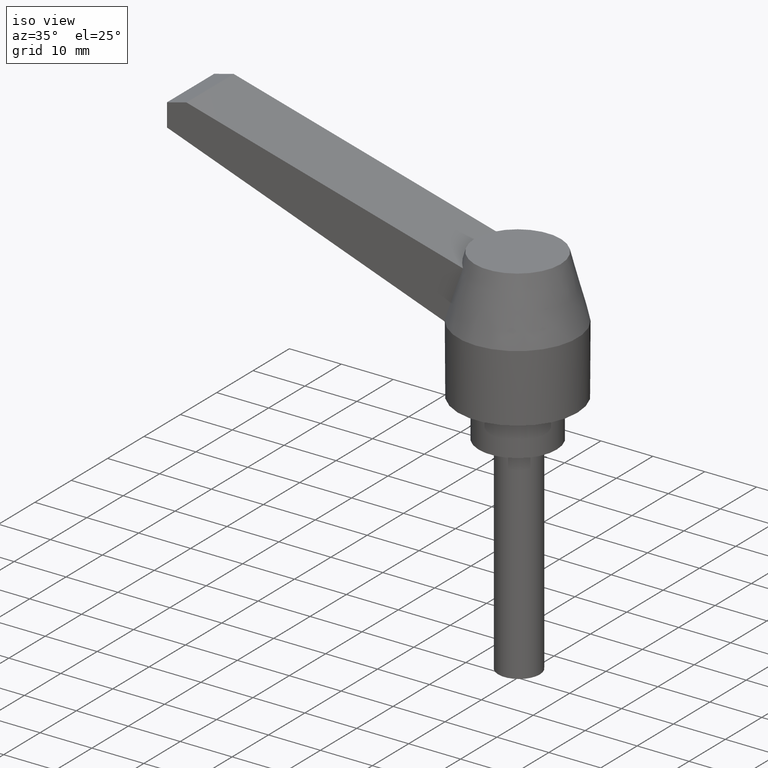
[diagram: clean part render]
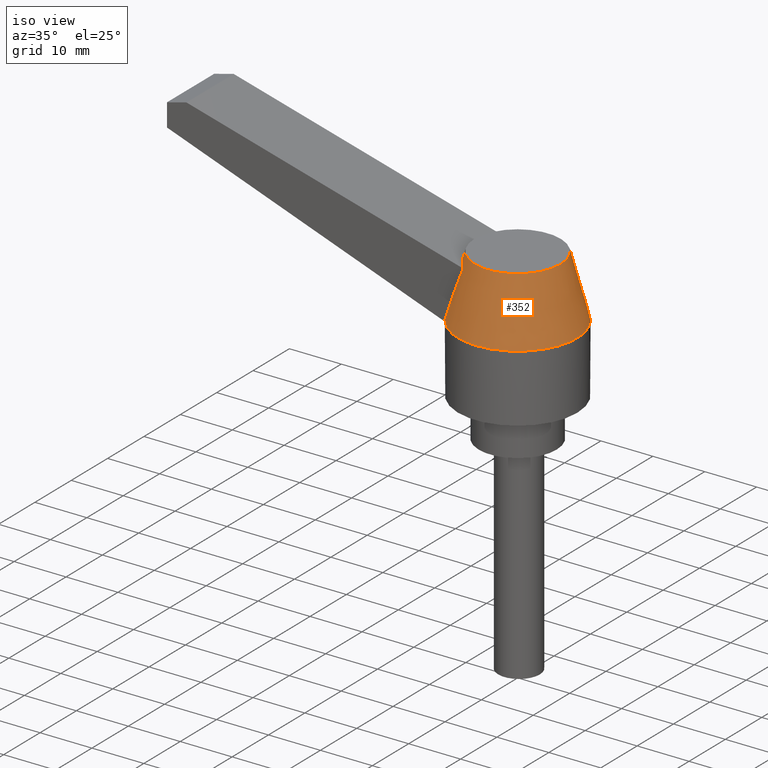
[diagram: same view with one face highlighted and labeled with its STEP entity id]
A machine part, iso view. The second image highlights one B-rep face of the part: STEP entity #352.
In plain terms, the highlighted face is a freeform B-spline surface patch.
Its self-contained STEP definition (entity closure, byte-faithful):
#80=CARTESIAN_POINT('',(8.284609690826677,4.310419E-014,32.500000000000007));
#81=VERTEX_POINT('',#80);
#82=CARTESIAN_POINT('',(-8.284609690826493,1.990051E-015,32.500000000000028));
#83=VERTEX_POINT('',#82);
#84=CARTESIAN_POINT('',(1.205831E-013,4.218442E-014,32.500000000000014));
#85=DIRECTION('',(-8.327157E-016,-1.072679E-015,-1.0));
#86=DIRECTION('',(-1.0,-1.110223E-016,8.327157E-016));
#87=AXIS2_PLACEMENT_3D('',#84,#85,#86);
#88=CIRCLE('',#87,8.284609690826557);
#89=EDGE_CURVE('',#81,#83,#88,.T.);
#91=CARTESIAN_POINT('',(1.205831E-013,4.218442E-014,32.500000000000014));
#92=DIRECTION('',(-8.327157E-016,-1.072679E-015,-1.0));
#93=DIRECTION('',(-1.0,-1.110223E-016,8.327157E-016));
#94=AXIS2_PLACEMENT_3D('',#91,#92,#93);
#95=CIRCLE('',#94,8.284609690826557);
#96=EDGE_CURVE('',#83,#81,#95,.T.);
#225=CARTESIAN_POINT('',(-9.486832980505144,6.499999999999973,20.500000000000014));
#226=VERTEX_POINT('',#225);
#233=CARTESIAN_POINT('',(-9.486832980505144,-6.500000000000132,20.500000000000028));
#234=VERTEX_POINT('',#233);
#235=CARTESIAN_POINT('',(1.205831E-013,4.144963E-014,20.500000000000000));
#236=DIRECTION('',(-2.068442E-015,-1.072679E-015,-1.0));
#237=DIRECTION('',(-1.0,-1.110223E-016,2.068442E-015));
#238=AXIS2_PLACEMENT_3D('',#235,#236,#237);
#239=CIRCLE('',#238,11.500000000000028);
#240=EDGE_CURVE('',#226,#234,#239,.T.);
#270=CARTESIAN_POINT('',(-11.500000000000011,3.670845E-016,20.500000000000028));
#271=CARTESIAN_POINT('',(-11.500000000000039,11.500000000000110,20.500000000000018));
#272=CARTESIAN_POINT('',(7.115116E-014,11.500000000000140,20.499999999999996));
#273=CARTESIAN_POINT('',(11.500000000000179,11.500000000000171,20.499999999999975));
#274=CARTESIAN_POINT('',(11.500000000000210,5.825746E-014,20.499999999999986));
#275=CARTESIAN_POINT('',(11.500000000000238,-11.500000000000052,20.499999999999996));
#276=CARTESIAN_POINT('',(1.290415E-013,-11.500000000000080,20.500000000000018));
#277=CARTESIAN_POINT('',(-11.499999999999982,-11.500000000000110,20.500000000000039));
#278=CARTESIAN_POINT('',(-11.500000000000011,3.670845E-016,20.500000000000028));
#279=CARTESIAN_POINT('',(-8.284609690826528,1.351526E-014,32.500000000000028));
#280=CARTESIAN_POINT('',(-8.284609690826557,8.284609690826663,32.500000000000021));
#281=CARTESIAN_POINT('',(9.191394E-014,8.284609690826692,32.500000000000007));
#282=CARTESIAN_POINT('',(8.284609690826741,8.284609690826720,32.499999999999993));
#283=CARTESIAN_POINT('',(8.284609690826770,7.085358E-014,32.500000000000000));
#284=CARTESIAN_POINT('',(8.284609690826798,-8.284609690826578,32.500000000000007));
#285=CARTESIAN_POINT('',(1.492523E-013,-8.284609690826606,32.500000000000021));
#286=CARTESIAN_POINT('',(-8.284609690826500,-8.284609690826635,32.500000000000036));
#287=CARTESIAN_POINT('',(-8.284609690826528,1.351526E-014,32.500000000000028));
#295=(BOUNDED_SURFACE()B_SPLINE_SURFACE(2,1,((#270,#279),(#271,#280),(#272,#281),(#273,#282),(#274,#283),(#275,#284),(#276,#285),(#277,#286),(#278,#287)),.UNSPECIFIED.,.T.,.F.,.U.)B_SPLINE_SURFACE_WITH_KNOTS((3,2,2,2,3),(2,2),(0.0,0.250000000000000,0.500000000000000,0.750000000000000,1.0),(0.0,12.423314164920997),.UNSPECIFIED.)GEOMETRIC_REPRESENTATION_ITEM()RATIONAL_B_SPLINE_SURFACE(((1.0,1.0),(0.707106781186548,0.707106781186548),(1.0,1.0),(0.707106781186548,0.707106781186548),(1.0,1.0),(0.707106781186548,0.707106781186548),(1.0,1.0),(0.707106781186548,0.707106781186548),(1.0,1.0)))REPRESENTATION_ITEM('')SURFACE());
#296=CARTESIAN_POINT('',(-8.643206395600316,-3.894810E-014,31.161698878357612));
#297=VERTEX_POINT('',#296);
#298=CARTESIAN_POINT('',(-8.643206395600283,1.204891E-014,31.161698878357605));
#299=DIRECTION('',(0.258819045102522,1.058347E-015,0.965925826289068));
#300=VECTOR('',#299,1.385511273452499);
#301=LINE('',#298,#300);
#302=EDGE_CURVE('',#297,#83,#301,.T.);
#303=ORIENTED_EDGE('',*,*,#302,.F.);
#304=CARTESIAN_POINT('',(-5.989480691774037,-6.499999999995148,30.431840536688341));
#305=VERTEX_POINT('',#304);
#306=CARTESIAN_POINT('',(-8.643206395600316,-3.894810E-014,31.161698878357598));
#307=CARTESIAN_POINT('',(-8.643206395600316,-0.506302708553347,31.161698878357598));
#308=CARTESIAN_POINT('',(-8.539626593121721,-1.769296278668458,31.133211162856824));
#309=CARTESIAN_POINT('',(-7.984379968311004,-3.656764436087019,30.980500812944641));
#310=CARTESIAN_POINT('',(-7.040074404947722,-5.309362675028818,30.720786973071725));
#311=CARTESIAN_POINT('',(-6.303491650776449,-6.179184693648446,30.518203463147103));
#312=CARTESIAN_POINT('',(-5.989480691774358,-6.499999999997559,30.431840536687346));
#313=B_SPLINE_CURVE_WITH_KNOTS('',3,(#306,#307,#308,#309,#310,#311,#312),.UNSPECIFIED.,.F.,.U.,(4,1,1,1,4),(0.0,1.520719268580641,3.785791119431691,5.874898477297450,7.247546618980997),.UNSPECIFIED.);
#314=EDGE_CURVE('',#297,#305,#313,.T.);
#315=ORIENTED_EDGE('',*,*,#314,.T.);
#316=CARTESIAN_POINT('',(-9.486832980505144,-6.500000000000132,20.500000000000028));
#317=CARTESIAN_POINT('',(-8.924129740569736,-6.500000000000132,22.232408786132851));
#318=CARTESIAN_POINT('',(-8.107705780670552,-6.499999999999328,24.680204736521603));
#319=CARTESIAN_POINT('',(-6.928262411578024,-6.500000000001096,27.986617058895817));
#320=CARTESIAN_POINT('',(-6.331554087225999,-6.499999999997559,29.566744910999788));
#321=CARTESIAN_POINT('',(-5.989480691774358,-6.499999999997559,30.431840536687346));
#322=B_SPLINE_CURVE_WITH_KNOTS('',3,(#316,#317,#318,#319,#320,#321),.UNSPECIFIED.,.F.,.U.,(4,1,1,4),(0.0,5.464623178458854,7.740353972626606,10.531241818890766),.UNSPECIFIED.);
#323=EDGE_CURVE('',#234,#305,#322,.T.);
#324=ORIENTED_EDGE('',*,*,#323,.F.);
#325=ORIENTED_EDGE('',*,*,#240,.F.);
#326=CARTESIAN_POINT('',(-5.989480691774158,6.499999999994949,30.431840536688327));
#327=VERTEX_POINT('',#326);
#328=CARTESIAN_POINT('',(-9.486832980505144,6.499999999999973,20.500000000000014));
#329=CARTESIAN_POINT('',(-8.924129740569738,6.499999999999973,22.232408786132837));
#330=CARTESIAN_POINT('',(-8.107705780670512,6.499999999999772,24.680204736521617));
#331=CARTESIAN_POINT('',(-6.928262411578147,6.500000000000093,27.986617058895462));
#332=CARTESIAN_POINT('',(-6.331554087226160,6.499999999999973,29.566744910999091));
#333=CARTESIAN_POINT('',(-5.989480691774682,6.499999999999973,30.431840536686323));
#334=B_SPLINE_CURVE_WITH_KNOTS('',3,(#328,#329,#330,#331,#332,#333),.UNSPECIFIED.,.F.,.U.,(4,1,1,4),(0.0,5.464623178458854,7.740353972626619,10.531241818889725),.UNSPECIFIED.);
#335=EDGE_CURVE('',#226,#327,#334,.T.);
#336=ORIENTED_EDGE('',*,*,#335,.T.);
#337=CARTESIAN_POINT('',(-8.643206395600316,-3.894810E-014,31.161698878357598));
#338=CARTESIAN_POINT('',(-8.643206395600235,0.506302708553188,31.161698878357598));
#339=CARTESIAN_POINT('',(-8.539626593121721,1.769296278668300,31.133211162856782));
#340=CARTESIAN_POINT('',(-7.984379968311005,3.656764436086861,30.980500812944641));
#341=CARTESIAN_POINT('',(-7.040074404947723,5.309362675028499,30.720786973071711));
#342=CARTESIAN_POINT('',(-6.303491650776449,6.179184693648288,30.518203463147088));
#343=CARTESIAN_POINT('',(-5.989480691774360,6.499999999997401,30.431840536687332));
#344=B_SPLINE_CURVE_WITH_KNOTS('',3,(#337,#338,#339,#340,#341,#342,#343),.UNSPECIFIED.,.F.,.U.,(4,1,1,1,4),(0.0,1.520719268580641,3.785791119431691,5.874898477297473,7.247546618981000),.UNSPECIFIED.);
#345=EDGE_CURVE('',#297,#327,#344,.T.);
#346=ORIENTED_EDGE('',*,*,#345,.F.);
#347=ORIENTED_EDGE('',*,*,#302,.T.);
#348=ORIENTED_EDGE('',*,*,#96,.T.);
#349=ORIENTED_EDGE('',*,*,#89,.T.);
#350=EDGE_LOOP('',(#303,#315,#324,#325,#336,#346,#347,#348,#349));
#351=FACE_OUTER_BOUND('',#350,.T.);
#352=ADVANCED_FACE('',(#351),#295,.F.);